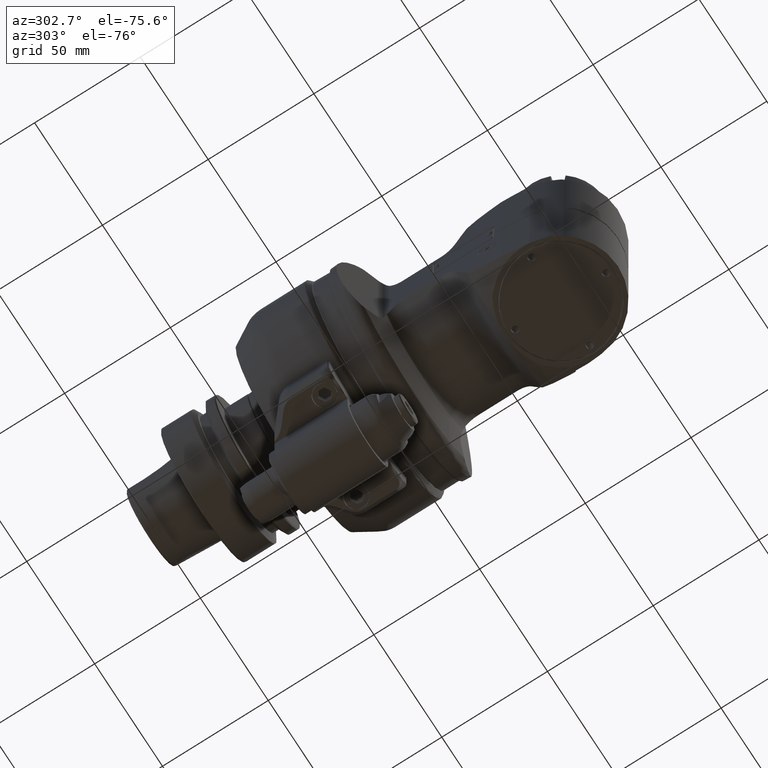
[diagram: clean part render]
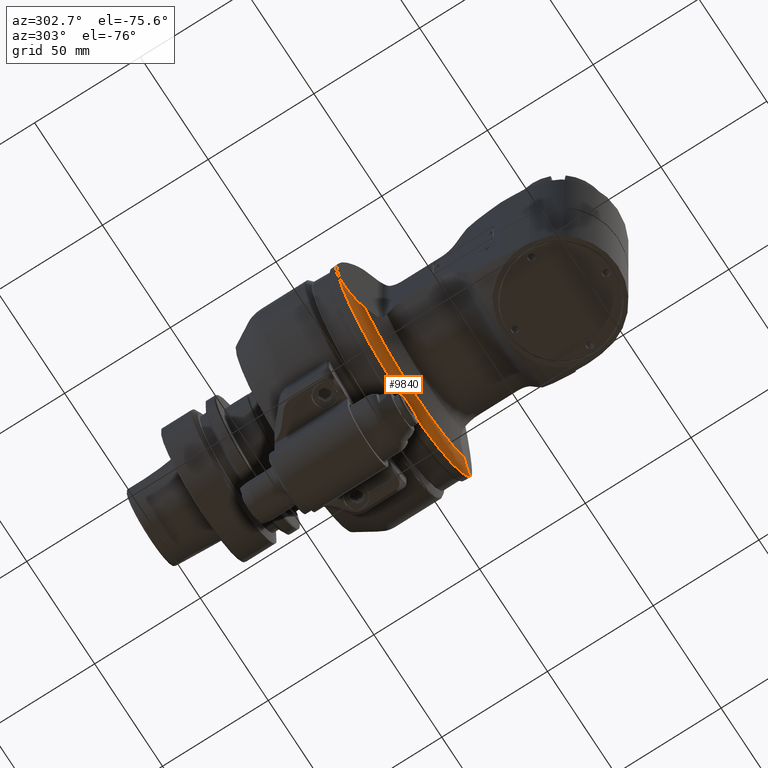
[diagram: same view with one face highlighted and labeled with its STEP entity id]
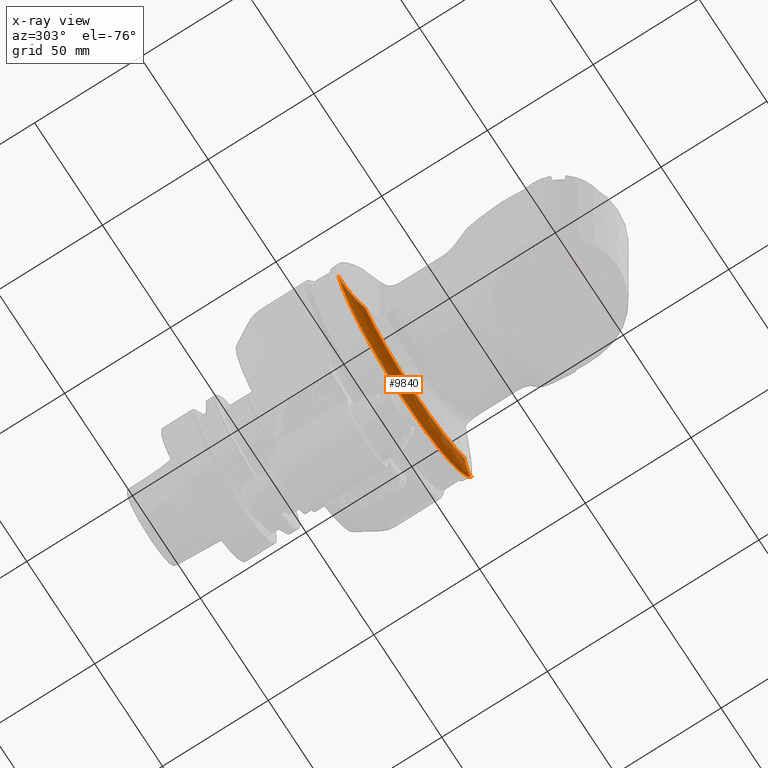
[diagram: x-ray of the same camera — body ghosted, the highlighted face saturated]
A machine part, auxiliary view. The second image highlights one B-rep face of the part: STEP entity #9840.
The next image is the same camera in x-ray: the body ghosted, the highlighted face saturated — about 0% of this face is hidden behind the body in this view.
In plain terms, the highlighted toroidal blend (fillet) surface has major radius 45 mm and minor (blend) radius 5 mm.
Its self-contained STEP definition (entity closure, byte-faithful):
#214=TOROIDAL_SURFACE('',#10565,45.,5.);
#472=B_SPLINE_CURVE_WITH_KNOTS('',3,(#15468,#15469,#15470,#15471,#15472,
#15473,#15474,#15475,#15476,#15477,#15478,#15479,#15480,#15481,#15482,#15483,
#15484,#15485),.UNSPECIFIED.,.F.,.F.,(4,2,2,2,2,2,2,2,4),(7.09037016510969,
7.87701940297547,8.1777676130302,8.47851582308493,8.80354910515075,9.12858238721657,
9.39474930405345,9.46225514204568,9.47110878449787),.UNSPECIFIED.);
#475=B_SPLINE_CURVE_WITH_KNOTS('',3,(#15534,#15535,#15536,#15537,#15538,
#15539,#15540,#15541,#15542,#15543,#15544,#15545,#15546,#15547,#15548,#15549,
#15550,#15551),.UNSPECIFIED.,.F.,.F.,(4,2,2,2,2,2,2,2,4),(2.9353606262133,
2.94421427000487,3.0117201079971,3.27788702483398,3.6029203068998,3.92795358896562,
4.22870179902035,4.52945000907508,5.31609924694026),.UNSPECIFIED.);
#795=CIRCLE('',#10555,47.11309145933);
#797=CIRCLE('',#10566,50.);
#1369=FACE_OUTER_BOUND('',#1990,.T.);
#1990=EDGE_LOOP('',(#6720,#6721,#6722,#6723));
#4069=VERTEX_POINT('',#15461);
#4070=VERTEX_POINT('',#15463);
#4071=VERTEX_POINT('',#15467);
#4076=VERTEX_POINT('',#15532);
#5095=EDGE_CURVE('',#4070,#4069,#795,.T.);
#5097=EDGE_CURVE('',#4071,#4070,#472,.T.);
#5105=EDGE_CURVE('',#4069,#4076,#475,.T.);
#5106=EDGE_CURVE('',#4076,#4071,#797,.T.);
#6720=ORIENTED_EDGE('',*,*,#5106,.T.);
#6721=ORIENTED_EDGE('',*,*,#5097,.T.);
#6722=ORIENTED_EDGE('',*,*,#5095,.T.);
#6723=ORIENTED_EDGE('',*,*,#5105,.T.);
#9840=ADVANCED_FACE('',(#1369),#214,.T.);
#10555=AXIS2_PLACEMENT_3D('',#15464,#11911,#11912);
#10565=AXIS2_PLACEMENT_3D('',#15552,#11931,#11932);
#10566=AXIS2_PLACEMENT_3D('',#15553,#11933,#11934);
#11911=DIRECTION('center_axis',(-1.,0.,0.));
#11912=DIRECTION('ref_axis',(0.,1.,1.598497119257E-10));
#11931=DIRECTION('center_axis',(-1.,0.,0.));
#11932=DIRECTION('ref_axis',(0.,1.,0.));
#11933=DIRECTION('center_axis',(1.,0.,0.));
#11934=DIRECTION('ref_axis',(0.,0.187279909699701,-0.982306589320703));
#15461=CARTESIAN_POINT('',(20.8461875045415,29.5857914056551,-36.6650287463848));
#15463=CARTESIAN_POINT('',(20.8461875004803,29.5857914026295,36.6650287600173));
#15464=CARTESIAN_POINT('Origin',(20.84618750067,0.,0.));
#15467=CARTESIAN_POINT('',(16.31464863572,9.363995485014,49.11532946603));
#15468=CARTESIAN_POINT('Ctrl Pts',(16.3146486357204,9.3639954850139,49.1153294660296));
#15469=CARTESIAN_POINT('Ctrl Pts',(16.5089546643471,12.1641130973679,48.5814780399138));
#15470=CARTESIAN_POINT('Ctrl Pts',(16.7970626489297,14.89268418197,47.7899078579087));
#15471=CARTESIAN_POINT('Ctrl Pts',(17.2779022721392,18.2335890551422,46.4688118507617));
#15472=CARTESIAN_POINT('Ctrl Pts',(17.4371534747882,19.2325943001654,46.0312727674626));
#15473=CARTESIAN_POINT('Ctrl Pts',(17.7890019232365,21.1784209335023,45.0645771002807));
#15474=CARTESIAN_POINT('Ctrl Pts',(17.9817805222086,22.1249619431992,44.5349222526509));
#15475=CARTESIAN_POINT('Ctrl Pts',(18.3765030725583,23.8625497430824,43.4504309586156));
#15476=CARTESIAN_POINT('Ctrl Pts',(18.6191470504405,24.8187856959593,42.7837721084178));
#15477=CARTESIAN_POINT('Ctrl Pts',(19.1522606848867,26.6017151146837,41.3190544357736));
#15478=CARTESIAN_POINT('Ctrl Pts',(19.4425932033076,27.4287590831444,40.5213723972789));
#15479=CARTESIAN_POINT('Ctrl Pts',(19.9758958164078,28.6338312433967,39.05613551005));
#15480=CARTESIAN_POINT('Ctrl Pts',(20.2825600158396,29.2079207962777,38.2135825467563));
#15481=CARTESIAN_POINT('Ctrl Pts',(20.6474740822835,29.5221310747005,37.2109893891602));
#15482=CARTESIAN_POINT('Ctrl Pts',(20.738047373882,29.5748920999617,36.9621413156877));
#15483=CARTESIAN_POINT('Ctrl Pts',(20.825030055835,29.5852601580148,36.7231583611383));
#15484=CARTESIAN_POINT('Ctrl Pts',(20.8354969146307,29.5858990840588,36.6944009029444));
#15485=CARTESIAN_POINT('Ctrl Pts',(20.8461875003858,29.5857914029915,36.6650287599816));
#15532=CARTESIAN_POINT('',(16.31464863573,9.36399548502,-49.11532946603));
#15534=CARTESIAN_POINT('Ctrl Pts',(20.8461875052387,29.5857914029426,-36.6650287466485));
#15535=CARTESIAN_POINT('Ctrl Pts',(20.835496917798,29.585899084251,-36.6944008942423));
#15536=CARTESIAN_POINT('Ctrl Pts',(20.8250300573607,29.5852601581966,-36.7231583569464));
#15537=CARTESIAN_POINT('Ctrl Pts',(20.738047373882,29.5748920999617,-36.9621413156877));
#15538=CARTESIAN_POINT('Ctrl Pts',(20.6474740822835,29.5221310747005,-37.2109893891602));
#15539=CARTESIAN_POINT('Ctrl Pts',(20.2825600158396,29.2079207962777,-38.2135825467563));
#15540=CARTESIAN_POINT('Ctrl Pts',(19.9758958164078,28.6338312433967,-39.05613551005));
#15541=CARTESIAN_POINT('Ctrl Pts',(19.4425932033076,27.4287590831444,-40.5213723972789));
#15542=CARTESIAN_POINT('Ctrl Pts',(19.1522606848867,26.6017151146837,-41.3190544357736));
#15543=CARTESIAN_POINT('Ctrl Pts',(18.6191470504405,24.8187856959593,-42.7837721084178));
#15544=CARTESIAN_POINT('Ctrl Pts',(18.3765030725583,23.8625497430824,-43.4504309586156));
#15545=CARTESIAN_POINT('Ctrl Pts',(17.9817805222086,22.1249619431991,-44.5349222526509));
#15546=CARTESIAN_POINT('Ctrl Pts',(17.7890019232365,21.1784209335023,-45.0645771002807));
#15547=CARTESIAN_POINT('Ctrl Pts',(17.4371534747882,19.2325943001654,-46.0312727674626));
#15548=CARTESIAN_POINT('Ctrl Pts',(17.2779022721392,18.2335890551422,-46.4688118507617));
#15549=CARTESIAN_POINT('Ctrl Pts',(16.79706264893,14.8926841819719,-47.789907857908));
#15550=CARTESIAN_POINT('Ctrl Pts',(16.5089546643476,12.164113097372,-48.5814780399126));
#15551=CARTESIAN_POINT('Ctrl Pts',(16.3146486357208,9.36399548502033,-49.1153294660284));
#15552=CARTESIAN_POINT('Origin',(16.31464863572,0.,0.));
#15553=CARTESIAN_POINT('Origin',(16.31464863572,0.,0.));